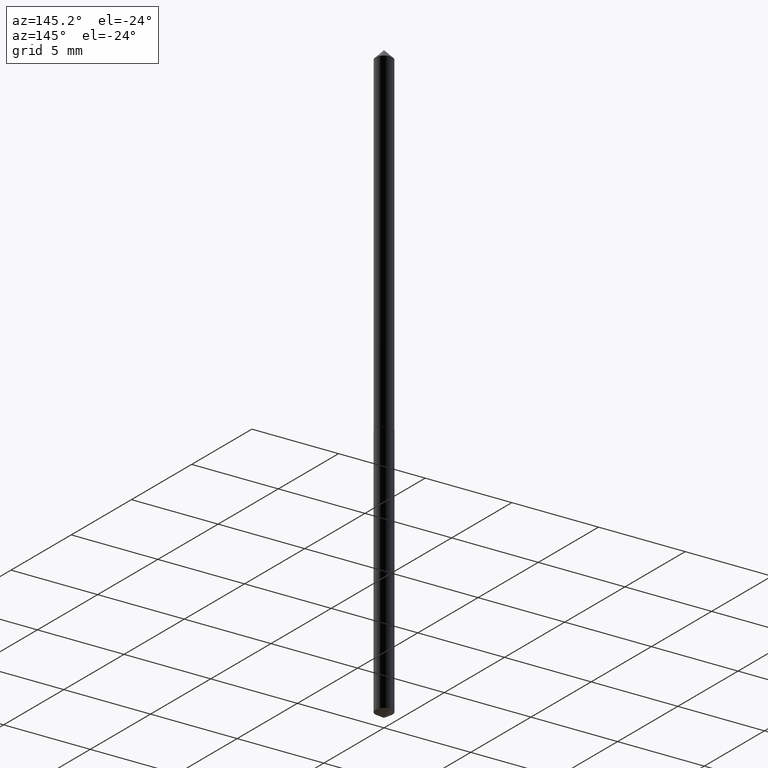
[diagram: clean part render]
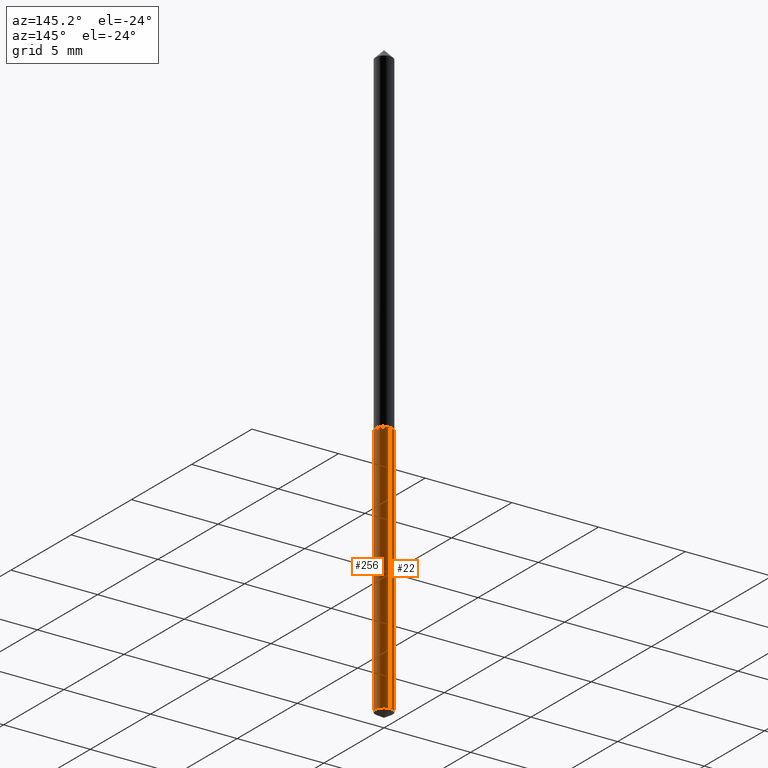
[diagram: same view with one multi-face feature highlighted, each face labeled with its STEP entity id]
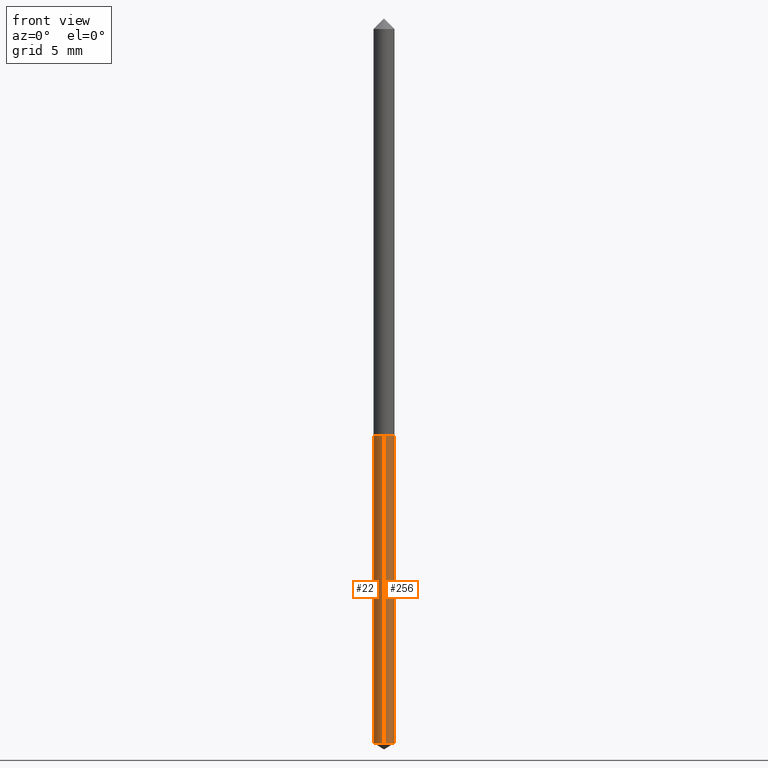
[diagram: same view with one multi-face feature highlighted, each face labeled with its STEP entity id]
A machine part, auxiliary view. The highlighted faces form ONE feature: a constant-radius fillet chain: 2 tangent blend faces with common blend radius 0.4953 mm. The faces share edges in the B-rep.
A second angle (front view) of the same feature is appended — it is thin or edge-on in the first view.
Their STEP definitions:
[1] entity #256 (Cylinder):
#11 = VERTEX_POINT ( 'NONE', #78 ) ;
#29 = DIRECTION ( 'NONE',  ( -2.445430218985429457E-29, 3.491536597909373207E-15, 1.000000000000000000 ) ) ;
#37 = ORIENTED_EDGE ( 'NONE', *, *, #338, .F. ) ;
#38 = CARTESIAN_POINT ( 'NONE',  ( 1.929474888080072746E-29, -2.754778776347241889E-15, -0.7889999999999999236 ) ) ;
#39 = EDGE_LOOP ( 'NONE', ( #249, #92, #37, #89 ) ) ;
#40 = VECTOR ( 'NONE', #160, 39.37007874015748143 ) ;
#51 = CARTESIAN_POINT ( 'NONE',  ( -1.361677722148628817E-16, -0.01950000000000275124, -0.7889999999999999236 ) ) ;
#70 = AXIS2_PLACEMENT_3D ( 'NONE', #38, #339, #287 ) ;
#78 = CARTESIAN_POINT ( 'NONE',  ( -1.361677722148488301E-16, -0.01950000000000476352, -1.363283217928962454 ) ) ;
#84 = CYLINDRICAL_SURFACE ( 'NONE', #175, 0.01949999999999999997 ) ;
#85 = CIRCLE ( 'NONE', #70, 0.01949999999999999997 ) ;
#86 = EDGE_CURVE ( 'NONE', #11, #285, #133, .T. ) ;
#89 = ORIENTED_EDGE ( 'NONE', *, *, #308, .F. ) ;
#92 = ORIENTED_EDGE ( 'NONE', *, *, #189, .T. ) ;
#110 = CARTESIAN_POINT ( 'NONE',  ( 1.929474888080072746E-29, -2.754778776347241889E-15, -0.7889999999999999236 ) ) ;
#113 = AXIS2_PLACEMENT_3D ( 'NONE', #181, #322, #235 ) ;
#133 = CIRCLE ( 'NONE', #113, 0.01949999999999999997 ) ;
#144 = VECTOR ( 'NONE', #29, 39.37007874015748143 ) ;
#150 = VERTEX_POINT ( 'NONE', #158 ) ;
#158 = CARTESIAN_POINT ( 'NONE',  ( -1.361677722148628817E-16, -0.01950000000000275124, -0.7889999999999999236 ) ) ;
#160 = DIRECTION ( 'NONE',  ( -2.445430218985429457E-29, 3.491536597909373207E-15, 1.000000000000000000 ) ) ;
#166 = DIRECTION ( 'NONE',  ( -2.445430218985429457E-29, 3.491536597909373207E-15, 1.000000000000000000 ) ) ;
#175 = AXIS2_PLACEMENT_3D ( 'NONE', #110, #166, #192 ) ;
#181 = CARTESIAN_POINT ( 'NONE',  ( 3.333844423459752764E-29, -4.759909649311378600E-15, -1.363283217928962454 ) ) ;
#183 = FACE_OUTER_BOUND ( 'NONE', #39, .T. ) ;
#185 = CARTESIAN_POINT ( 'NONE',  ( 1.385558334732387892E-16, 0.01949999999999724523, -0.7889999999999999236 ) ) ;
#189 = EDGE_CURVE ( 'NONE', #285, #226, #307, .T. ) ;
#192 = DIRECTION ( 'NONE',  ( -6.982962677686264344E-15, -1.000000000000000000, 0.000000000000000000 ) ) ;
#226 = VERTEX_POINT ( 'NONE', #278 ) ;
#235 = DIRECTION ( 'NONE',  ( -6.982962677686264344E-15, -1.000000000000000000, 0.000000000000000000 ) ) ;
#249 = ORIENTED_EDGE ( 'NONE', *, *, #86, .T. ) ;
#256 = ADVANCED_FACE ( 'NONE', ( #183 ), #84, .T. ) ;
#278 = CARTESIAN_POINT ( 'NONE',  ( 1.385558334732529147E-16, 0.01949999999999724523, -0.7889999999999999236 ) ) ;
#285 = VERTEX_POINT ( 'NONE', #361 ) ;
#287 = DIRECTION ( 'NONE',  ( -6.982962677686264344E-15, -1.000000000000000000, 0.000000000000000000 ) ) ;
#307 = LINE ( 'NONE', #185, #144 ) ;
#308 = EDGE_CURVE ( 'NONE', #11, #150, #333, .T. ) ;
#322 = DIRECTION ( 'NONE',  ( -2.445430218985429457E-29, 3.491536597909373207E-15, 1.000000000000000000 ) ) ;
#333 = LINE ( 'NONE', #51, #40 ) ;
#338 = EDGE_CURVE ( 'NONE', #150, #226, #85, .T. ) ;
#339 = DIRECTION ( 'NONE',  ( -2.445430218985429457E-29, 3.491536597909373207E-15, 1.000000000000000000 ) ) ;
#361 = CARTESIAN_POINT ( 'NONE',  ( 1.385558334732528161E-16, 0.01949999999999523989, -1.363283217928962454 ) ) ;
[2] entity #22 (Cylinder):
#11 = VERTEX_POINT ( 'NONE', #78 ) ;
#22 = ADVANCED_FACE ( 'NONE', ( #298 ), #363, .T. ) ;
#29 = DIRECTION ( 'NONE',  ( -2.445430218985429457E-29, 3.491536597909373207E-15, 1.000000000000000000 ) ) ;
#40 = VECTOR ( 'NONE', #160, 39.37007874015748143 ) ;
#47 = CARTESIAN_POINT ( 'NONE',  ( 3.333844423459752764E-29, -4.759909649311378600E-15, -1.363283217928962454 ) ) ;
#51 = CARTESIAN_POINT ( 'NONE',  ( -1.361677722148628817E-16, -0.01950000000000275124, -0.7889999999999999236 ) ) ;
#54 = DIRECTION ( 'NONE',  ( -2.445430218985429457E-29, 3.491536597909373207E-15, 1.000000000000000000 ) ) ;
#69 = CIRCLE ( 'NONE', #208, 0.01949999999999999997 ) ;
#78 = CARTESIAN_POINT ( 'NONE',  ( -1.361677722148488301E-16, -0.01950000000000476352, -1.363283217928962454 ) ) ;
#90 = ORIENTED_EDGE ( 'NONE', *, *, #189, .F. ) ;
#117 = EDGE_CURVE ( 'NONE', #285, #11, #69, .T. ) ;
#144 = VECTOR ( 'NONE', #29, 39.37007874015748143 ) ;
#150 = VERTEX_POINT ( 'NONE', #158 ) ;
#152 = AXIS2_PLACEMENT_3D ( 'NONE', #303, #54, #335 ) ;
#157 = CIRCLE ( 'NONE', #152, 0.01949999999999999997 ) ;
#158 = CARTESIAN_POINT ( 'NONE',  ( -1.361677722148628817E-16, -0.01950000000000275124, -0.7889999999999999236 ) ) ;
#159 = DIRECTION ( 'NONE',  ( -2.445430218985429457E-29, 3.491536597909373207E-15, 1.000000000000000000 ) ) ;
#160 = DIRECTION ( 'NONE',  ( -2.445430218985429457E-29, 3.491536597909373207E-15, 1.000000000000000000 ) ) ;
#172 = ORIENTED_EDGE ( 'NONE', *, *, #308, .T. ) ;
#185 = CARTESIAN_POINT ( 'NONE',  ( 1.385558334732387892E-16, 0.01949999999999724523, -0.7889999999999999236 ) ) ;
#189 = EDGE_CURVE ( 'NONE', #285, #226, #307, .T. ) ;
#208 = AXIS2_PLACEMENT_3D ( 'NONE', #47, #159, #265 ) ;
#213 = DIRECTION ( 'NONE',  ( -6.982962677686264344E-15, -1.000000000000000000, 0.000000000000000000 ) ) ;
#224 = EDGE_CURVE ( 'NONE', #226, #150, #157, .T. ) ;
#226 = VERTEX_POINT ( 'NONE', #278 ) ;
#232 = EDGE_LOOP ( 'NONE', ( #90, #349, #172, #318 ) ) ;
#261 = CARTESIAN_POINT ( 'NONE',  ( 1.929474888080072746E-29, -2.754778776347241889E-15, -0.7889999999999999236 ) ) ;
#265 = DIRECTION ( 'NONE',  ( -6.982962677686264344E-15, -1.000000000000000000, 0.000000000000000000 ) ) ;
#278 = CARTESIAN_POINT ( 'NONE',  ( 1.385558334732529147E-16, 0.01949999999999724523, -0.7889999999999999236 ) ) ;
#285 = VERTEX_POINT ( 'NONE', #361 ) ;
#298 = FACE_OUTER_BOUND ( 'NONE', #232, .T. ) ;
#303 = CARTESIAN_POINT ( 'NONE',  ( 1.929474888080072746E-29, -2.754778776347241889E-15, -0.7889999999999999236 ) ) ;
#307 = LINE ( 'NONE', #185, #144 ) ;
#308 = EDGE_CURVE ( 'NONE', #11, #150, #333, .T. ) ;
#318 = ORIENTED_EDGE ( 'NONE', *, *, #224, .F. ) ;
#331 = AXIS2_PLACEMENT_3D ( 'NONE', #261, #357, #213 ) ;
#333 = LINE ( 'NONE', #51, #40 ) ;
#335 = DIRECTION ( 'NONE',  ( -6.982962677686264344E-15, -1.000000000000000000, 0.000000000000000000 ) ) ;
#349 = ORIENTED_EDGE ( 'NONE', *, *, #117, .T. ) ;
#357 = DIRECTION ( 'NONE',  ( -2.445430218985429457E-29, 3.491536597909373207E-15, 1.000000000000000000 ) ) ;
#361 = CARTESIAN_POINT ( 'NONE',  ( 1.385558334732528161E-16, 0.01949999999999523989, -1.363283217928962454 ) ) ;
#363 = CYLINDRICAL_SURFACE ( 'NONE', #331, 0.01949999999999999997 ) ;